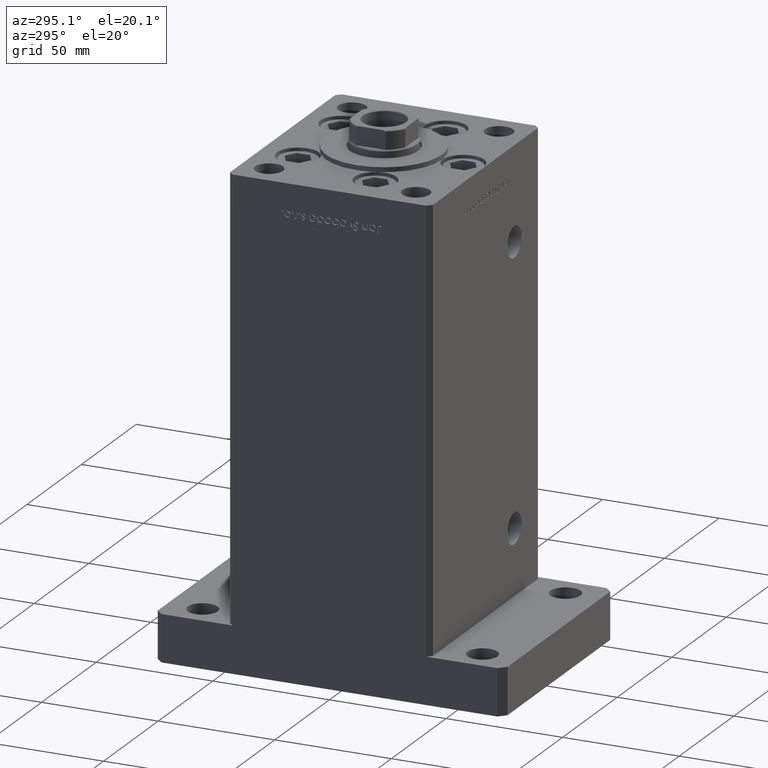
[diagram: clean part render]
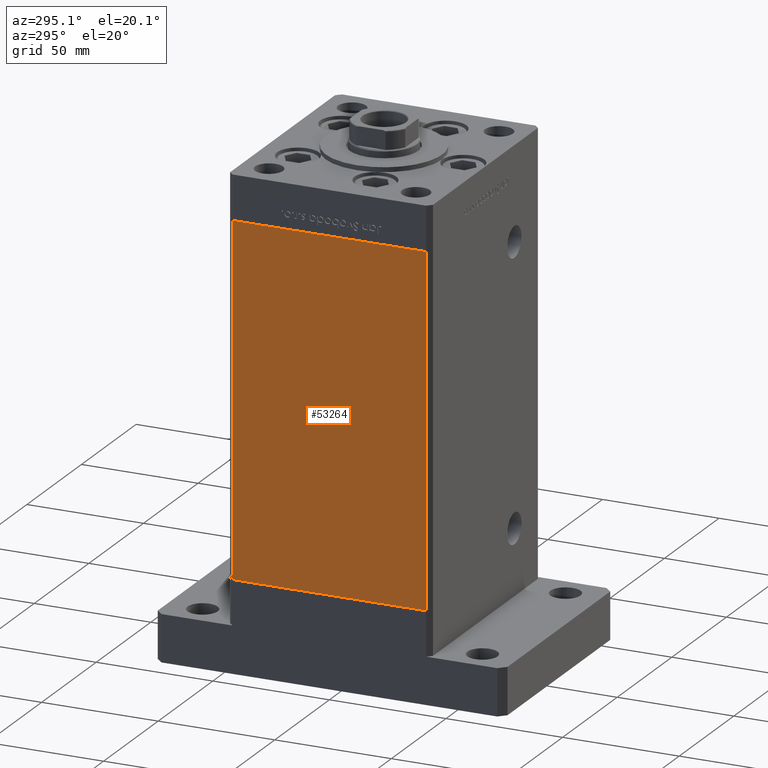
[diagram: same view with one face highlighted and labeled with its STEP entity id]
A machine part, auxiliary view. The second image highlights one B-rep face of the part: STEP entity #53264.
In plain terms, the highlighted planar face has unit normal (1, 0, 0).
Its self-contained STEP definition (entity closure, byte-faithful):
#3625 = DIRECTION ( 'NONE',  ( -0.000000000000000000, -0.000000000000000000, -1.000000000000000000 ) ) ;
#4572 = CARTESIAN_POINT ( 'NONE',  ( -50.00000000000001421, 41.49999999999999289, 148.5000000000000000 ) ) ;
#5195 = EDGE_CURVE ( 'NONE', #44586, #18162, #10346, .T. ) ;
#5209 = DIRECTION ( 'NONE',  ( 3.344045254895050973E-16, -1.000000000000000000, 0.000000000000000000 ) ) ;
#5397 = VERTEX_POINT ( 'NONE', #22245 ) ;
#6832 = EDGE_CURVE ( 'NONE', #44586, #5397, #24272, .T. ) ;
#8132 = EDGE_LOOP ( 'NONE', ( #43368, #11118, #42787, #19484 ) ) ;
#10088 = FACE_OUTER_BOUND ( 'NONE', #8132, .T. ) ;
#10338 = VECTOR ( 'NONE', #3625, 1000.000000000000000 ) ;
#10346 = LINE ( 'NONE', #42396, #32906 ) ;
#11118 = ORIENTED_EDGE ( 'NONE', *, *, #25232, .F. ) ;
#14117 = CARTESIAN_POINT ( 'NONE',  ( -50.00000000000001421, 41.49999999999999289, 0.000000000000000000 ) ) ;
#14649 = LINE ( 'NONE', #14117, #15646 ) ;
#15646 = VECTOR ( 'NONE', #30944, 1000.000000000000000 ) ;
#17970 = DIRECTION ( 'NONE',  ( -3.344045254895050480E-16, 1.000000000000000000, 0.000000000000000000 ) ) ;
#18162 = VERTEX_POINT ( 'NONE', #38878 ) ;
#19438 = VECTOR ( 'NONE', #27211, 1000.000000000000000 ) ;
#19484 = ORIENTED_EDGE ( 'NONE', *, *, #6832, .T. ) ;
#19600 = LINE ( 'NONE', #48637, #19438 ) ;
#22245 = CARTESIAN_POINT ( 'NONE',  ( -50.00000000000001421, 41.49999999999999289, 0.000000000000000000 ) ) ;
#24272 = LINE ( 'NONE', #29136, #10338 ) ;
#25232 = EDGE_CURVE ( 'NONE', #18162, #39040, #19600, .T. ) ;
#27211 = DIRECTION ( 'NONE',  ( -0.000000000000000000, -0.000000000000000000, -1.000000000000000000 ) ) ;
#29136 = CARTESIAN_POINT ( 'NONE',  ( -50.00000000000001421, 41.49999999999999289, 148.5000000000000000 ) ) ;
#30944 = DIRECTION ( 'NONE',  ( 3.344045254895050973E-16, -1.000000000000000000, 0.000000000000000000 ) ) ;
#31676 = CARTESIAN_POINT ( 'NONE',  ( -49.99999999999998579, -41.49999999999999289, 0.000000000000000000 ) ) ;
#32906 = VECTOR ( 'NONE', #5209, 1000.000000000000000 ) ;
#33728 = PLANE ( 'NONE',  #46948 ) ;
#34527 = DIRECTION ( 'NONE',  ( 1.000000000000000000, 3.344045254895050480E-16, -0.000000000000000000 ) ) ;
#38878 = CARTESIAN_POINT ( 'NONE',  ( -49.99999999999998579, -41.49999999999999289, 148.5000000000000000 ) ) ;
#39040 = VERTEX_POINT ( 'NONE', #31676 ) ;
#41877 = CARTESIAN_POINT ( 'NONE',  ( -50.00000000000001421, 41.49999999999999289, 148.5000000000000000 ) ) ;
#42396 = CARTESIAN_POINT ( 'NONE',  ( -50.00000000000001421, 41.49999999999999289, 148.5000000000000000 ) ) ;
#42787 = ORIENTED_EDGE ( 'NONE', *, *, #5195, .F. ) ;
#43368 = ORIENTED_EDGE ( 'NONE', *, *, #49523, .T. ) ;
#44586 = VERTEX_POINT ( 'NONE', #4572 ) ;
#46948 = AXIS2_PLACEMENT_3D ( 'NONE', #41877, #34527, #17970 ) ;
#48637 = CARTESIAN_POINT ( 'NONE',  ( -49.99999999999998579, -41.49999999999999289, 148.5000000000000000 ) ) ;
#49523 = EDGE_CURVE ( 'NONE', #5397, #39040, #14649, .T. ) ;
#53264 = ADVANCED_FACE ( 'NONE', ( #10088 ), #33728, .F. ) ;